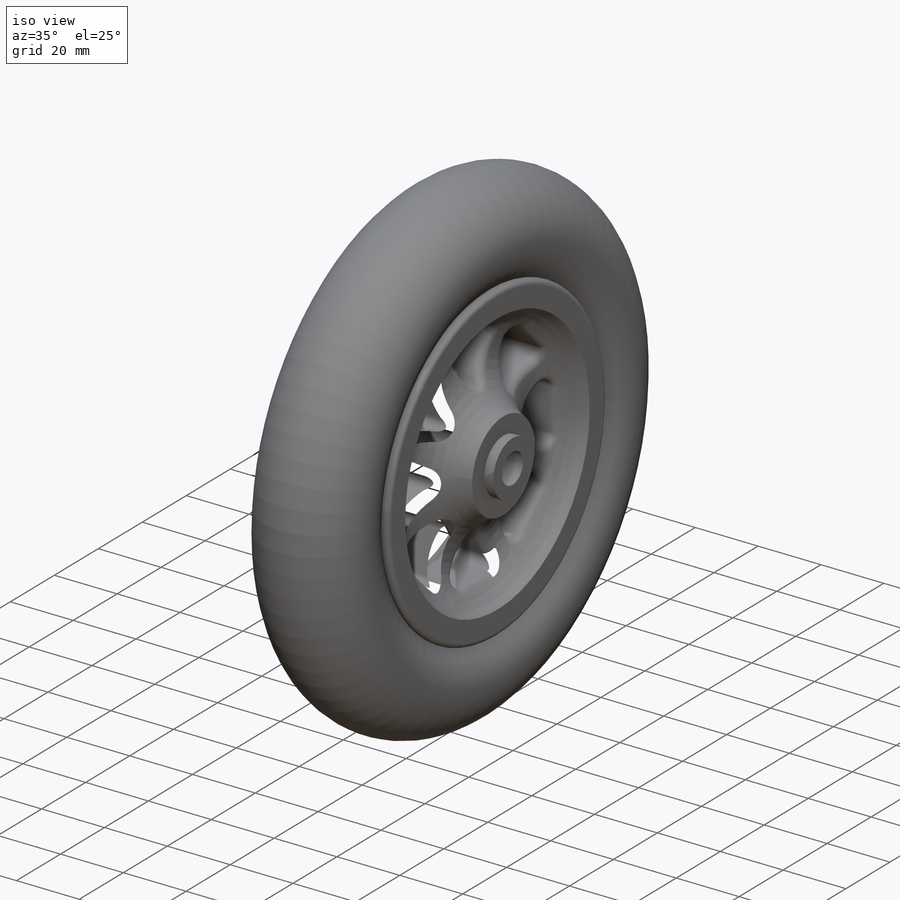
[diagram: iso view]
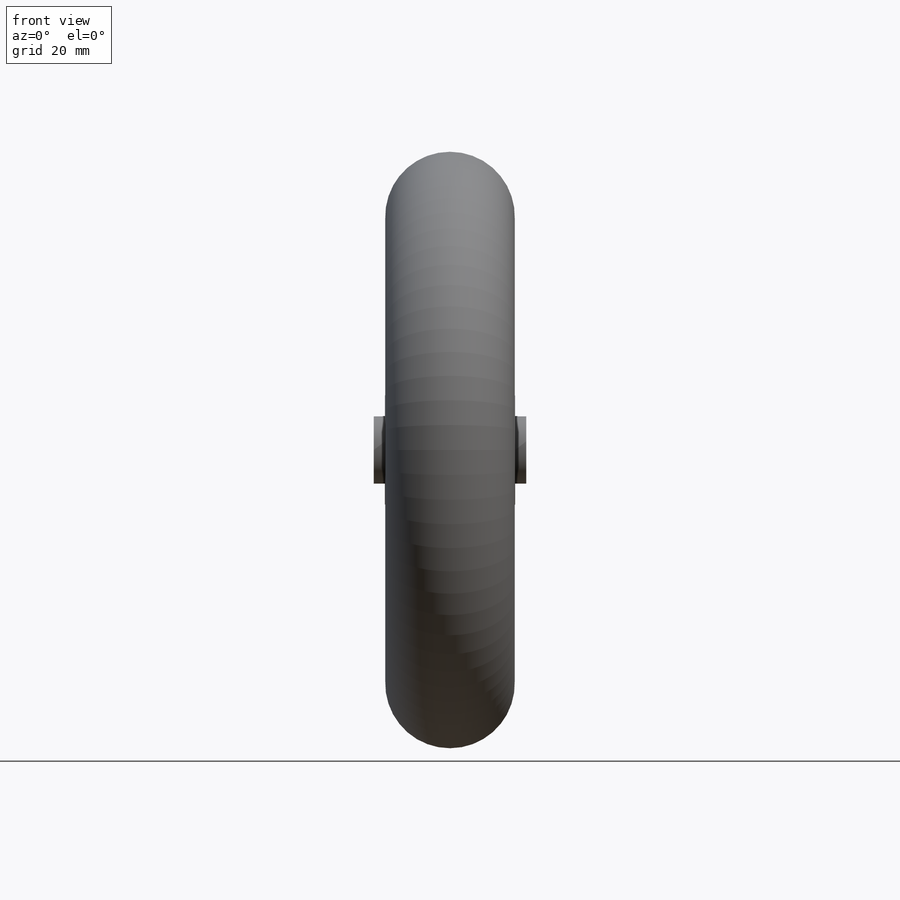
[diagram: front view]
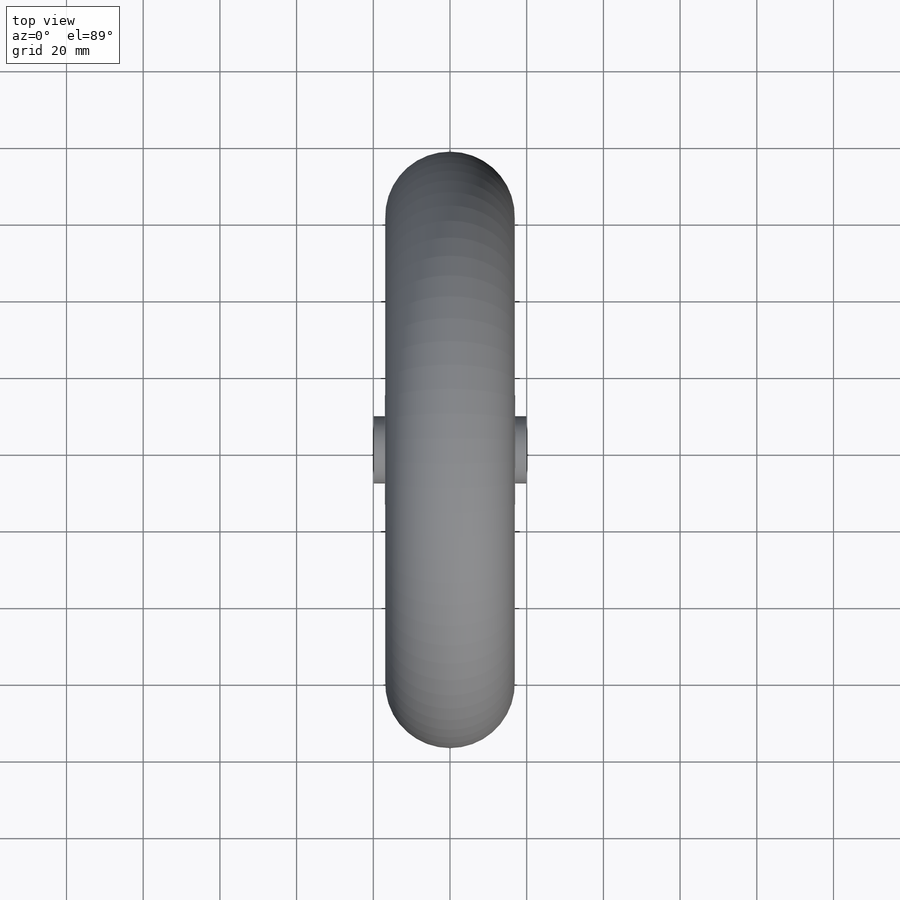
[diagram: top view]
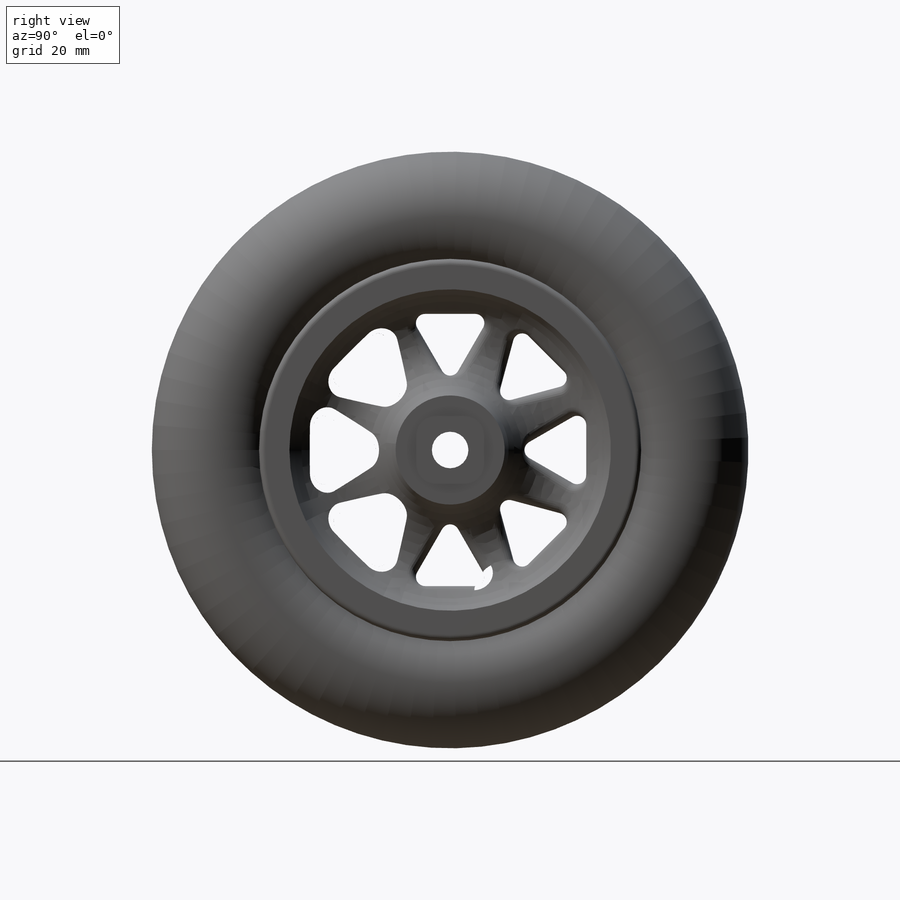
[diagram: right view]
SOLIDWORKS PART (.sldprt)
format: sldprt  version: not decoded by parser v0  size: 834,048 bytes
history: native  units: mm
features: sketch x2, material x1, revolve x1, cut_extrude x1, fillet x1, pattern_circular x1 (+11 scaffold rows collapsed)
feature tree (18):
  scaffold x11  (default folders/planes/origin — collapsed)
  material  "Material <not specified>"
  sketch  "Sketch1"  dims[c1.D3=15.875mm c1.D9=~15.137834mm c1.D10=1.5875mm c1.D11=~16.090324mm c1.D1=4.7625mm c1.D2=39.751mm c2.D3=55.5625mm c2.D4=30.1498mm c2.D5=8.763mm c2.D6=2.8956mm c2.D7=14.224mm c3.D3=6.35mm c3.D8=41.91mm c3.D9=6.35mm c3.D11=77.7875mm]
  revolve  "Revolve1"  Angle=360deg
  sketch  "Sketch2"  dims[D2=~2.38125mm D1=19.3929mm D3=35.4838mm]
  cut_extrude  "Cut-Extrude1"  [1 undecoded]
  fillet  "Fillet1"  Radius=2.54mm
  pattern_circular  "CirPattern1"  Count=8 Angle=360deg
decode coverage: 5 of 6 modeling features carry decoded parameters
note: ~ marks probable driven/reference dimensions
note: 1 parameter value undecoded
note: suppression state not decoded; provenance and decode notes live in map.json
